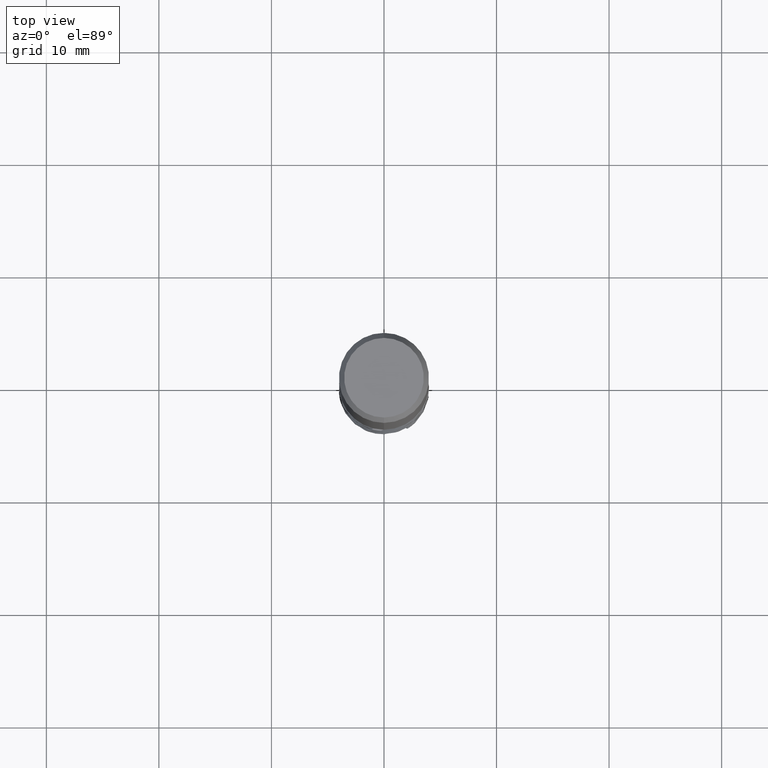
[diagram: clean part render]
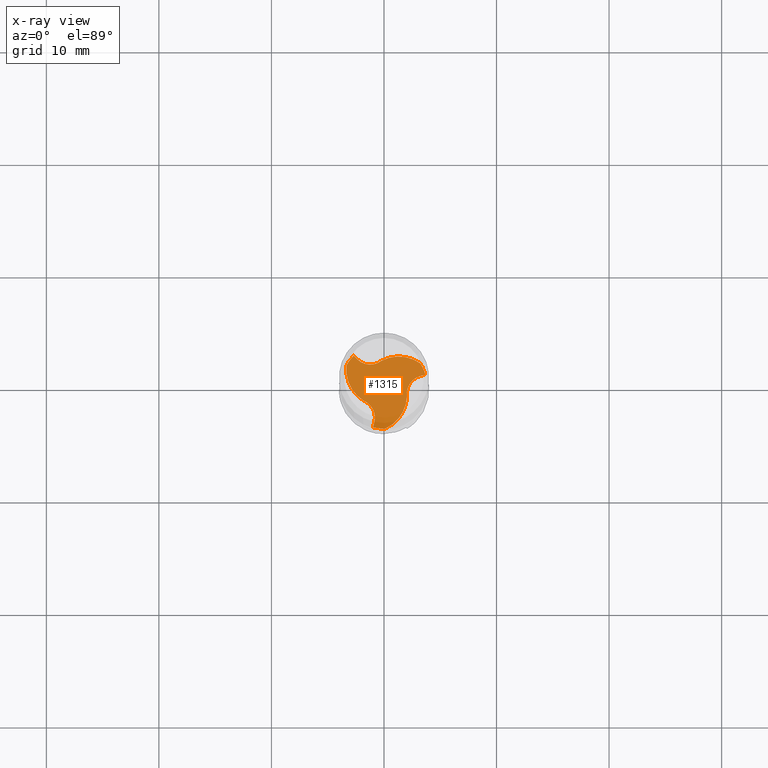
[diagram: x-ray — body ghosted, one internal face saturated and labeled with its STEP entity id]
A machine part, top view, then the same camera in x-ray: the body is ghosted and one INTERNAL B-rep face — a face not visible from any outside direction — is saturated and labeled: STEP entity #1315.
In plain terms, the highlighted planar face has unit normal (0, 0, -1).
Its self-contained STEP definition (entity closure, byte-faithful):
#493=VERTEX_POINT('',#1432);
#523=EDGE_CURVE('',#1139,#1309,#1466,.T.);
#529=EDGE_CURVE('',#1217,#625,#1473,.T.);
#533=EDGE_CURVE('',#1141,#801,#1477,.T.);
#567=EDGE_CURVE('',#1311,#795,#1514,.T.);
#625=VERTEX_POINT('',#1582);
#655=VERTEX_POINT('',#1612);
#693=EDGE_CURVE('',#1201,#1139,#1654,.T.);
#731=EDGE_CURVE('',#787,#935,#1693,.T.);
#787=VERTEX_POINT('',#1753);
#795=VERTEX_POINT('',#1761);
#801=VERTEX_POINT('',#1769);
#911=EDGE_CURVE('',#935,#493,#1891,.T.);
#915=EDGE_CURVE('',#493,#1311,#1895,.T.);
#935=VERTEX_POINT('',#1916);
#1059=EDGE_CURVE('',#625,#787,#2049,.T.);
#1109=EDGE_CURVE('',#795,#1141,#2103,.T.);
#1137=EDGE_CURVE('',#801,#655,#2133,.T.);
#1139=VERTEX_POINT('',#2135);
#1141=VERTEX_POINT('',#2137);
#1201=VERTEX_POINT('',#2203);
#1217=VERTEX_POINT('',#2222);
#1259=EDGE_CURVE('',#1309,#1217,#2270,.T.);
#1309=VERTEX_POINT('',#2323);
#1311=VERTEX_POINT('',#2325);
#1315=ADVANCED_FACE('',(#2329),#2330,.T.);
#1361=EDGE_CURVE('',#655,#1201,#2379,.T.);
#1432=CARTESIAN_POINT('',(-0.859025607607151,-3.23454058647689,-41.9999999999986));
#1466=LINE('',#2734,#2735);
#1473=CIRCLE('',#2745,3.3072);
#1477=LINE('',#2751,#2752);
#1514=CIRCLE('',#3192,3.3072);
#1582=CARTESIAN_POINT('',(0.112970481596325,-3.79827035277742,-42.0));
#1612=CARTESIAN_POINT('',(-0.219692526724771,2.23436622420134,-42.0000000000003));
#1654=CIRCLE('',#4513,3.79995);
#1693=CIRCLE('',#4616,3.79995);
#1753=CARTESIAN_POINT('',(4.65342320597142E-016,-3.79995,-42.0));
#1761=CARTESIAN_POINT('',(-3.34588385674534,1.80129986944732,-41.9999999999986));
#1769=CARTESIAN_POINT('',(-2.37168151365771,2.36120829192819,-42.0000000000003));
#1891=LINE('',#6497,#6498);
#1895=CIRCLE('',#6505,1.62666667);
#1916=CARTESIAN_POINT('',(-0.975374807084233,-3.67263719800982,-41.9999999999986));
#2049=CIRCLE('',#7496,3.79995);
#2103=CIRCLE('',#8114,3.79995);
#2133=CIRCLE('',#8658,1.62666667);
#2135=CARTESIAN_POINT('',(3.66828451590229,0.991619237858725,-42.0));
#2137=CARTESIAN_POINT('',(-2.69290970881802,2.68101796015126,-42.0));
#2203=CARTESIAN_POINT('',(3.23291337514741,1.99697048333043,-42.0));
#2222=CARTESIAN_POINT('',(2.04486417487517,-0.926923802936216,-41.9999999999999));
#2270=CIRCLE('',#10088,1.62666667);
#2323=CARTESIAN_POINT('',(3.23070712126161,0.873332294548646,-41.9999999999999));
#2325=CARTESIAN_POINT('',(-1.82517164815368,-1.30744242126518,-41.9999999999986));
#2329=FACE_OUTER_BOUND('',#10345,.T.);
#2330=PLANE('',#10346);
#2379=CIRCLE('',#10501,3.3072);
#2734=CARTESIAN_POINT('',(3.23070712126161,0.873332294548646,-41.9999999999999));
#2735=VECTOR('',#10672,1.0);
#2745=AXIS2_PLACEMENT_3D('',#10696,#10697,#10698);
#2751=CARTESIAN_POINT('',(-2.37168151365771,2.36120829192819,-42.0000000000003));
#2752=VECTOR('',#10702,0.999999999999999);
#3192=AXIS2_PLACEMENT_3D('',#10745,#10746,#10747);
#4513=AXIS2_PLACEMENT_3D('',#10896,#10897,#10898);
#4616=AXIS2_PLACEMENT_3D('',#10917,#10918,#10919);
#6497=CARTESIAN_POINT('',(-0.859025607607151,-3.23454058647689,-41.9999999999986));
#6498=VECTOR('',#11111,0.999999999999999);
#6505=AXIS2_PLACEMENT_3D('',#11113,#11114,#11115);
#7496=AXIS2_PLACEMENT_3D('',#11237,#11238,#11239);
#8114=AXIS2_PLACEMENT_3D('',#11287,#11288,#11289);
#8658=AXIS2_PLACEMENT_3D('',#11320,#11321,#11322);
#10088=AXIS2_PLACEMENT_3D('',#11486,#11487,#11488);
#10345=EDGE_LOOP('',(#11538,#11539,#11540,#11541,#11542,#11543,#11544,#11545,#11546,#11547,#11548,#11549,#11550));
#10346=AXIS2_PLACEMENT_3D('',#11551,#11552,#11553);
#10501=AXIS2_PLACEMENT_3D('',#11618,#11619,#11620);
#10672=DIRECTION('',(-0.965350732483929,-0.260955864645235,3.5527136788005E-015));
#10696=CARTESIAN_POINT('',(-1.25947057009355,-0.789287567908701,-41.9999999999999));
#10697=DIRECTION('',(-3.27515792264421E-015,4.16333634234433E-017,-1.0));
#10698=DIRECTION('',(0.9991336311589,-0.0416171489560757,-3.27405308975748E-015));
#10702=DIRECTION('',(0.708669774291255,-0.705540325570397,2.55351295663786E-015));
#10745=CARTESIAN_POINT('',(-0.0538077996541801,1.48537729297149,-41.9999999999986));
#10746=DIRECTION('',(8.95117313604032E-015,-1.38777878078145E-015,-1.0));
#10747=DIRECTION('',(-0.535608323808507,-0.844466531880951,-3.62239010548982E-015));
#10896=CARTESIAN_POINT('',(0.0,0.0,-42.0));
#10897=DIRECTION('',(0.0,0.0,-1.0));
#10898=DIRECTION('',(0.0,1.0,0.0));
#10917=CARTESIAN_POINT('',(0.0,0.0,-42.0));
#10918=DIRECTION('',(0.0,0.0,-1.0));
#10919=DIRECTION('',(0.0,1.0,0.0));
#11111=DIRECTION('',(0.256680958192675,0.966496190215611,1.33226762955019E-015));
#11113=CARTESIAN_POINT('',(-2.43119274703224,-2.81700622702104,-41.9999999999986));
#11114=DIRECTION('',(-8.95117313604032E-015,1.38777878078145E-015,1.0));
#11115=DIRECTION('',(0.372553953409373,0.928010534314695,2.04692161162001E-015));
#11237=CARTESIAN_POINT('',(0.0,0.0,-42.0));
#11238=DIRECTION('',(0.0,0.0,-1.0));
#11239=DIRECTION('',(0.0,1.0,0.0));
#11287=CARTESIAN_POINT('',(0.0,0.0,-42.0));
#11288=DIRECTION('',(0.0,0.0,-1.0));
#11289=DIRECTION('',(0.0,1.0,0.0));
#11320=CARTESIAN_POINT('',(-1.22400258170354,3.5139777939375,-42.0000000000003));
#11321=DIRECTION('',(-3.10862446895044E-015,4.99600361081321E-016,1.0));
#11322=DIRECTION('',(0.617403720991406,-0.786646455090192,2.31228516730134E-015));
#11486=CARTESIAN_POINT('',(3.65519532873254,-0.696971566916488,-41.9999999999999));
#11487=DIRECTION('',(3.27515792264421E-015,-4.16333634234434E-017,1.0));
#11488=DIRECTION('',(-0.989957674400781,-0.141364079224524,3.23638225831078E-015));
#11538=ORIENTED_EDGE('',*,*,#533,.T.);
#11539=ORIENTED_EDGE('',*,*,#1137,.T.);
#11540=ORIENTED_EDGE('',*,*,#1361,.T.);
#11541=ORIENTED_EDGE('',*,*,#693,.T.);
#11542=ORIENTED_EDGE('',*,*,#523,.T.);
#11543=ORIENTED_EDGE('',*,*,#1259,.T.);
#11544=ORIENTED_EDGE('',*,*,#529,.T.);
#11545=ORIENTED_EDGE('',*,*,#1059,.T.);
#11546=ORIENTED_EDGE('',*,*,#731,.T.);
#11547=ORIENTED_EDGE('',*,*,#911,.T.);
#11548=ORIENTED_EDGE('',*,*,#915,.T.);
#11549=ORIENTED_EDGE('',*,*,#567,.T.);
#11550=ORIENTED_EDGE('',*,*,#1109,.T.);
#11551=CARTESIAN_POINT('',(0.0,1.899975,-42.0));
#11552=DIRECTION('',(0.0,0.0,-1.0));
#11553=DIRECTION('',(0.0,1.0,0.0));
#11618=CARTESIAN_POINT('',(1.31327836974444,-0.696089725062933,-42.0000000000003));
#11619=DIRECTION('',(3.10862446895044E-015,-4.99600361081321E-016,-1.0));
#11620=DIRECTION('',(-0.463525307350387,0.886083680837047,-1.88361383930164E-015));